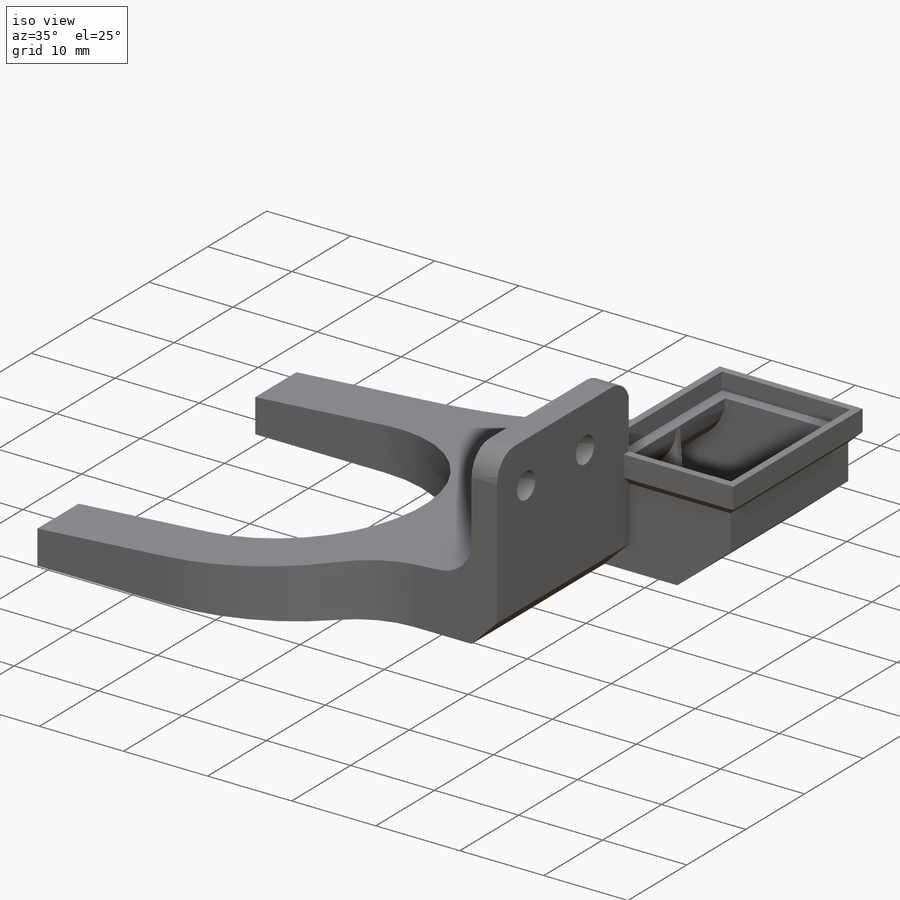
[diagram: iso view]
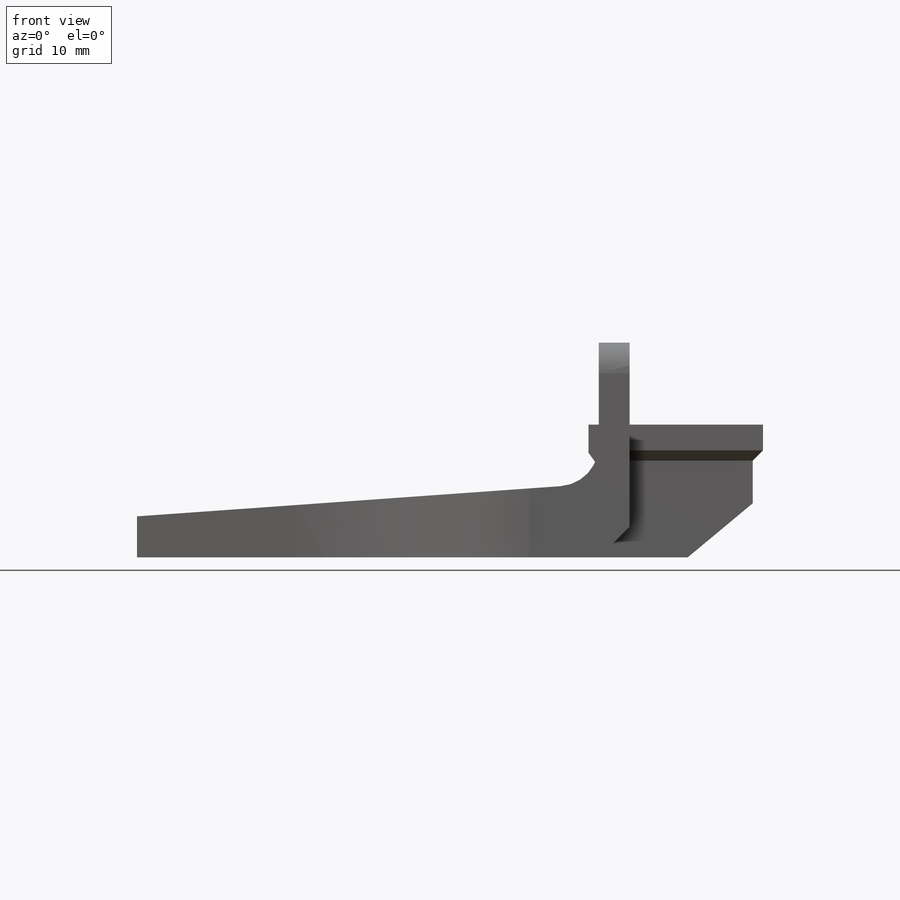
[diagram: front view]
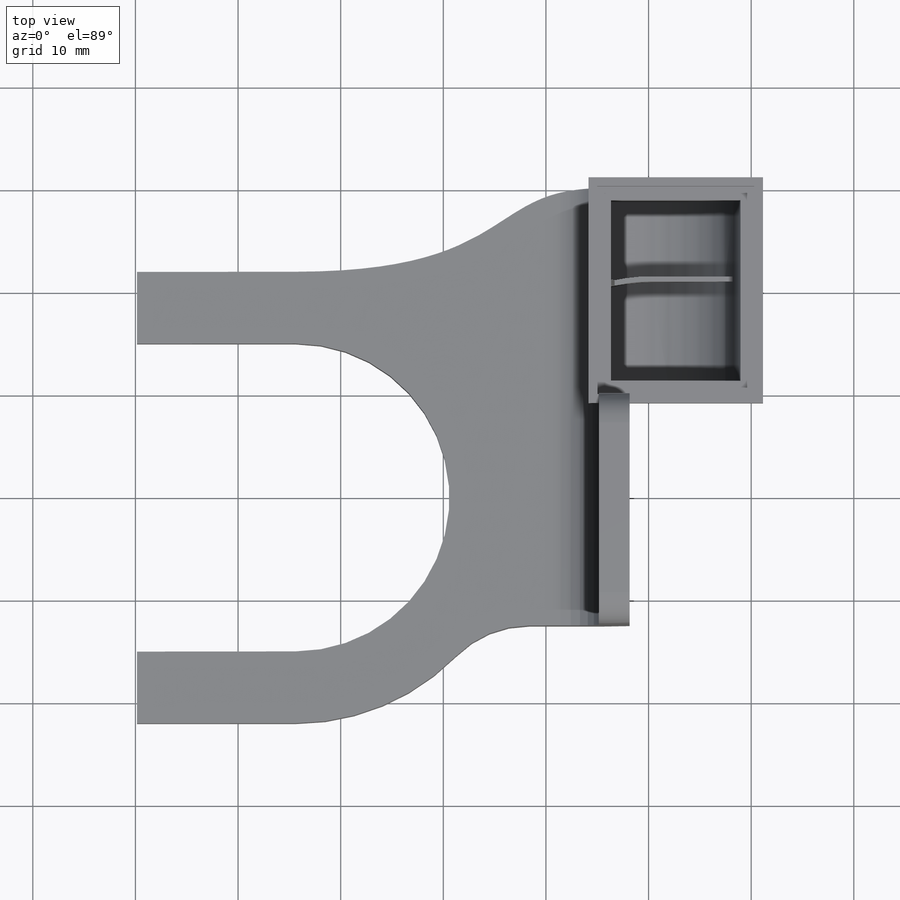
[diagram: top view]
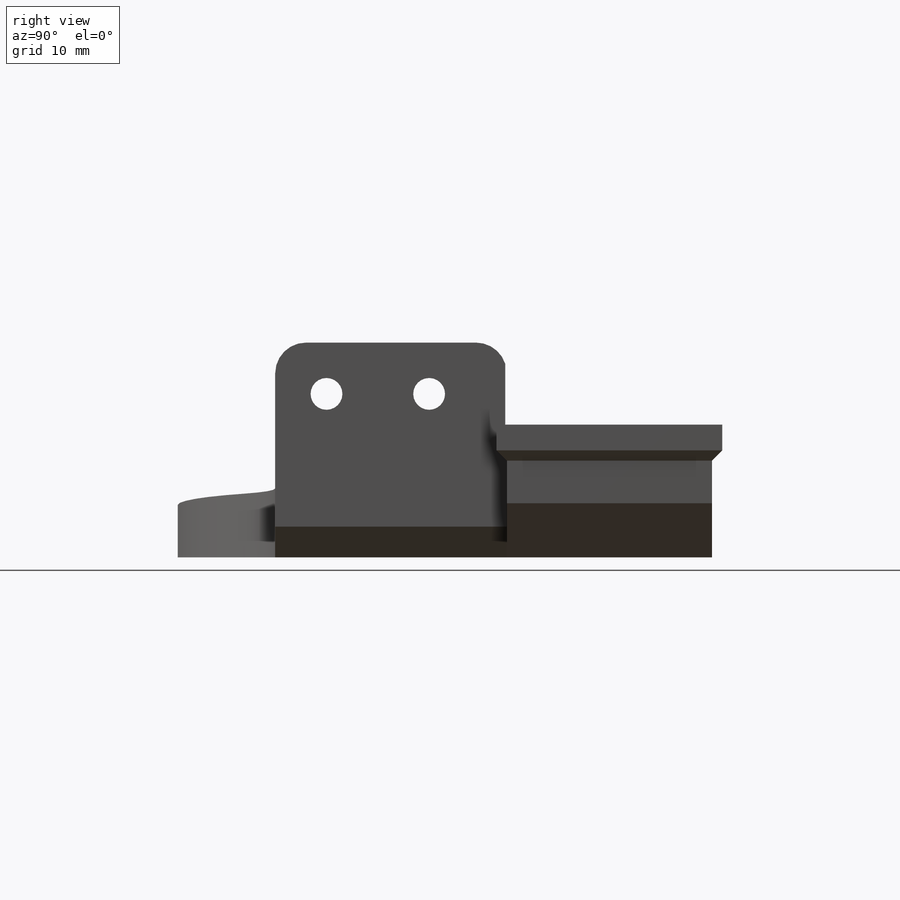
[diagram: right view]
SOLIDWORKS PART (.sldprt)
format: sldprt  version: not decoded by parser v0  size: 584,192 bytes
history: native  units: mm
features: sketch x17, extrude x10, cut_extrude x4, fillet x2, chamfer x2, material x1, plane x1, boolean_combine x1, shell x1, sweep x1 (+13 scaffold rows collapsed)
feature tree (53):
  scaffold x13  (default folders/planes/origin — collapsed)
  material  "Material <not specified>"
  plane  "Plane1"
  sketch  "Sketch1"  dims[D3=4.0mm D1=60.0mm D2=4.0mm D4=1.0mm]
  extrude  "Boss-Extrude1"  Depth=100mm
  sketch  "Sketch3"
  sketch  "Sketch4"  dims[D1=30.0mm D4=13.0mm D2=0.0mm D3=7.0mm]
  extrude  "Boss-Extrude2"  Depth=20mm
  boolean_combine  "Combine2"
  shell  "Shell1"  Thickness=1.2mm
  sketch  "Sketch5"  dims[D1=0.0mm]
  extrude  "Boss-Extrude3"  [1 undecoded]
  sketch  "Sketch6"  dims[D1=0.0mm]
  extrude  "Boss-Extrude4"  [1 undecoded]
  sketch  "Sketch7"  dims[D1=0.0mm]
  cut_extrude  "Cut-Extrude1"  [1 undecoded]
  fillet  "Fillet1"  Radius=10mm
  sketch  "Sketch8"  dims[D1=3.0mm]
  extrude  "Boss-Extrude5"  Depth=10mm
  sketch  "Sketch9"  dims[D2=~1.137364mm D1=0.0mm]
  cut_extrude  "Cut-Extrude3"  [1 undecoded]
  sketch  "Sketch10"
  extrude  "Boss-Extrude6"  [1 undecoded]
  chamfer  "Chamfer1"  Distance=3mm Angle=45deg
  sketch  "Sketch11"  dims[D1=3.1mm D2=10.0mm]
  cut_extrude  "Cut-Extrude4"  [1 undecoded]
  fillet  "Fillet2"  Radius=3mm
  sketch  "Sketch12"  dims[D2=0.5mm D3=3.0mm D1=0.0mm]
  sketch  "Sketch13"
  sweep  "Cut-Sweep1"
  sketch  "Sketch14"  dims[c1.D3=~22.098175mm c1.D1=13.0mm c1.D2=10.0mm c2.D3=0.25mm c2.D4=0.25mm]
  extrude  "Boss-Extrude7"  [1 undecoded]
  sketch  "Sketch16"  dims[D1=0.0mm]
  extrude  "Boss-Extrude8"  [1 undecoded]
  sketch  "Sketch17"  dims[D1=0.0mm]
  extrude  "Boss-Extrude9"  [1 undecoded]
  sketch  "Sketch18"  dims[D1=0.0mm D2=1.0mm]
  extrude  "Boss-Extrude11"  Depth=2mm
  chamfer  "Chamfer3"  Distance=1mm Angle=45deg
  sketch  "Sketch19"  dims[D1=0.15mm]
  cut_extrude  "Cut-Extrude5"  Depth=10mm
decode coverage: 24 of 38 modeling features carry decoded parameters
note: ~ marks probable driven/reference dimensions
note: 9 parameter values undecoded
summary: no parameter record found for 9 features
note: suppression state not decoded; provenance and decode notes live in map.json
